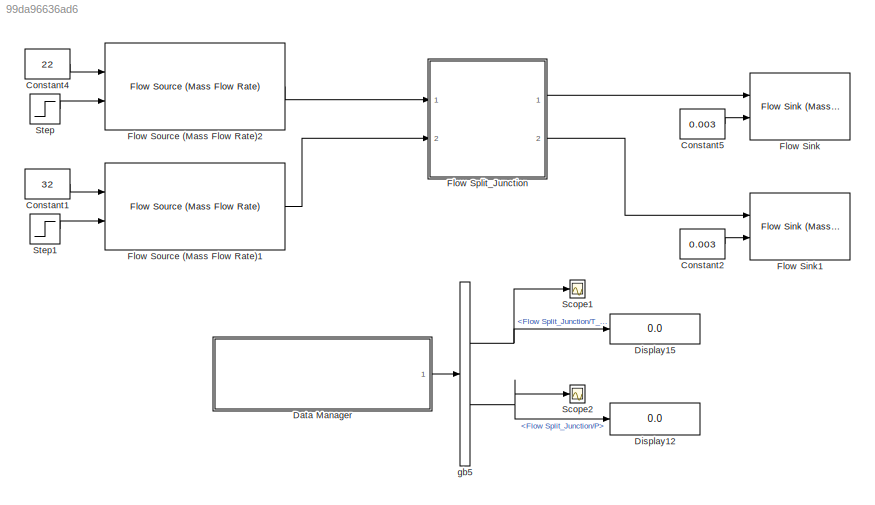
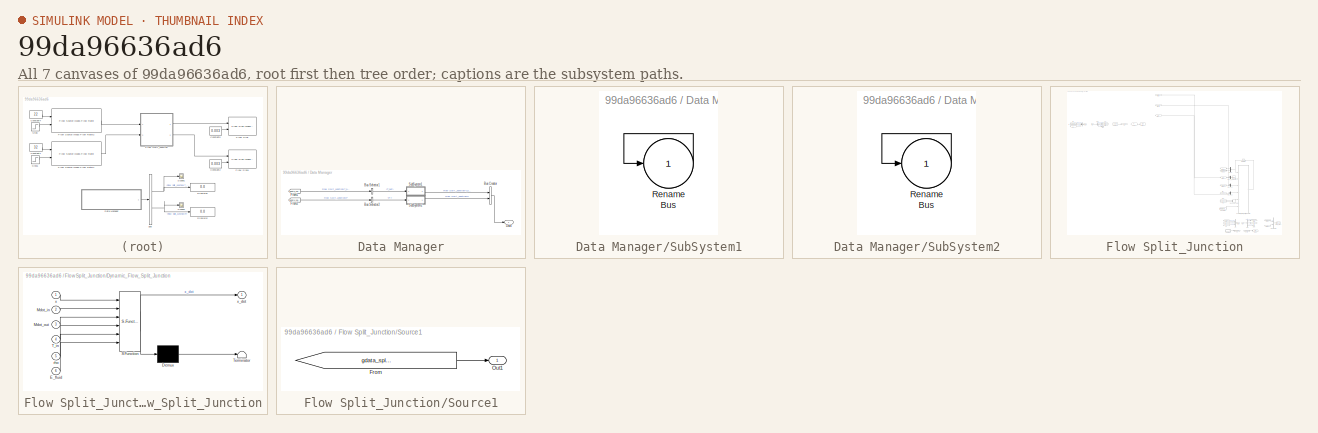
[diagram: thumbnail index - all 7 canvases of the model, root first then tree order]
MODEL slx_99da96636ad6
KIND model
BLOCK [Constant] Constant1
  Value = 32
BLOCK [Constant] Constant2
  Value = 0.003
BLOCK [Constant] Constant4
  Value = 22
BLOCK [Constant] Constant5
  Value = 0.003
BLOCK [SubSystem] Data Manager
  AncestorBlock = DAEMOT_Lib/Support Functions/Data Manager
  OpenFcn = data_manager
  Ports = [0, 1]
  RequestExecContextInheritance = off
  UserDataPersistent = on
BLOCK [BusCreator] Data Manager/Bus Creator
  DisplayOption = bar
  Inputs = 2
  Ports = [2, 1]
BLOCK [BusSelector] Data Manager/Bus Selector1
  OutputSignals = T_out
  Ports = [1, 1]
BLOCK [BusSelector] Data Manager/Bus Selector2
  OutputSignals = P
  Ports = [1, 1]
BLOCK [Outport] Data Manager/Data
  IconDisplay = Port number
BLOCK [From] Data Manager/From1
  GotoTag = gdata_split_junction_testFlowSplit_Junctiondata_sink1
  TagVisibility = global
  UserDataPersistent = on
BLOCK [From] Data Manager/From2
  GotoTag = gdata_split_junction_testFlowSplit_Junctiondata_sink1
  TagVisibility = global
  UserDataPersistent = on
BLOCK [SubSystem] Data Manager/SubSystem1
  Ports = [1, 1]
  RequestExecContextInheritance = off
BLOCK [Outport] Data Manager/SubSystem1/Bus
  IconDisplay = Port number
BLOCK [Inport] Data Manager/SubSystem1/Rename
  IconDisplay = Port number
BLOCK [SubSystem] Data Manager/SubSystem2
  Ports = [1, 1]
  RequestExecContextInheritance = off
BLOCK [Outport] Data Manager/SubSystem2/Bus
  IconDisplay = Port number
BLOCK [Inport] Data Manager/SubSystem2/Rename
  IconDisplay = Port number
BLOCK [Display] Display12
  Decimation = 1
  Ports = [1]
BLOCK [Display] Display15
  Decimation = 1
  Ports = [1]
BLOCK [Reference] Flow Sink  REF=DAEMOT_Lib/Components/Flow Sink (Mass Flow Rate)
  M = 0
  M_ext = on
  P = 0
  P_ext = on
  Ports = [2]
  SourceBlock = DAEMOT_Lib/Components/Flow Sink (Mass Flow Rate)
  SourceType = Flow Sink (Mass Flow Rate)
  T = 0
  T_ext = on
BLOCK [Reference] Flow Sink1  REF=DAEMOT_Lib/Components/Flow Sink (Mass Flow Rate)
  M = 0
  M_ext = on
  P = 0
  P_ext = on
  Ports = [2]
  SourceBlock = DAEMOT_Lib/Components/Flow Sink (Mass Flow Rate)
  SourceType = Flow Sink (Mass Flow Rate)
  T = 0
  T_ext = on
BLOCK [Reference] Flow Source (Mass Flow Rate)1  REF=DAEMOT_Lib/Components/Flow Source (Mass Flow Rate)
  M = 0
  M_ext = on
  P = 0
  P_ext = on
  Ports = [2, 1]
  SourceBlock = DAEMOT_Lib/Components/Flow Source (Mass Flow Rate)
  SourceType = Flow Source (Mass Flow Rate)
  T = 0
  T_ext = on
BLOCK [Reference] Flow Source (Mass Flow Rate)2  REF=DAEMOT_Lib/Components/Flow Source (Mass Flow Rate)
  M = 0
  M_ext = on
  P = 0
  P_ext = on
  Ports = [2, 1]
  SourceBlock = DAEMOT_Lib/Components/Flow Source (Mass Flow Rate)
  SourceType = Flow Source (Mass Flow Rate)
  T = 0
  T_ext = on
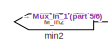
[diagram: Flow Split_Junction - part 1/6, top center region]
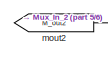
[diagram: Flow Split_Junction - part 2/6, top center region]
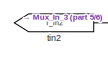
[diagram: Flow Split_Junction - part 3/6, top center region]
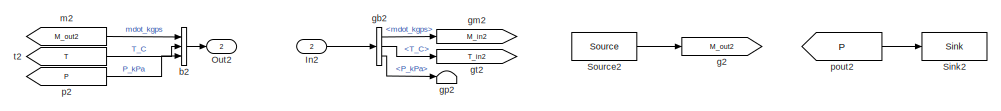
[diagram: Flow Split_Junction - part 4/6, top left region]
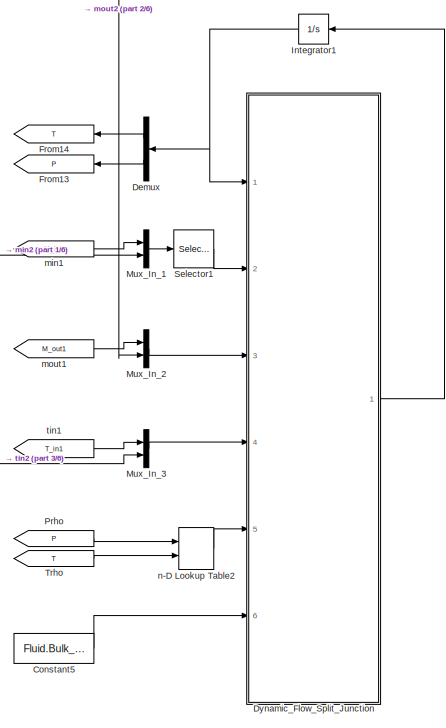
[diagram: Flow Split_Junction - part 5/6, middle right region]
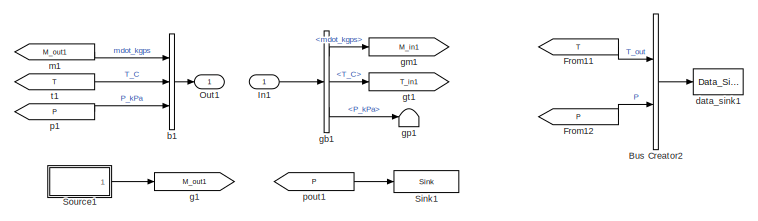
[diagram: Flow Split_Junction - part 6/6, bottom right region]
BLOCK [SubSystem] Flow Split_Junction
  AncestorBlock = DAEMOT_Lib/Components/Flow Split_Junction
  CopyFcn = h      = get_param(gcb,'handle');   % Get block handle\nblk    = gcb; \n\nset_param(blk, 'LinkStatus', 'inactive')
  OpenFcn = load('Fluids.mat');\nSet_Fluid_Popup_Names( Fluid )
  Ports = [2, 2]
  RequestExecContextInheritance = off
BLOCK [BusCreator] Flow Split_Junction/Bus Creator2
  DisplayOption = bar
  Inputs = 2
  Ports = [2, 1]
BLOCK [Constant] Flow Split_Junction/Constant5
  Value = Fluid.Bulk_Mod
BLOCK [Demux] Flow Split_Junction/Demux
  DisplayOption = bar
  Outputs = 2
  Ports = [1, 2]
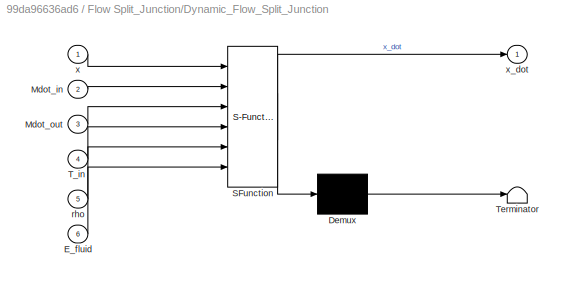
BLOCK [SubSystem] Flow Split_Junction/Dynamic_Flow_Split_Junction
  ErrorFcn = Stateflow.Translate.translate
  PermitHierarchicalResolution = ExplicitOnly
  Ports = [6, 1]
  RequestExecContextInheritance = off
  SFBlockType = MATLAB Function
  TreatAsAtomicUnit = on
BLOCK [Demux] Flow Split_Junction/Dynamic_Flow_Split_Junction/ Demux 
  Outputs = 1
  Ports = [1, 1]
BLOCK [S-Function] Flow Split_Junction/Dynamic_Flow_Split_Junction/ SFunction 
  EnableBusSupport = on
  FunctionName = sf_sfun
  Parameters = D,E,L,t,v
  PortCounts = [6 2]
  Ports = [6, 2]
  Tag = Stateflow S-Function split_junction_test 2
BLOCK [Terminator] Flow Split_Junction/Dynamic_Flow_Split_Junction/ Terminator 
BLOCK [Inport] Flow Split_Junction/Dynamic_Flow_Split_Junction/E_fluid
  IconDisplay = Port number
  Port = 6
BLOCK [Inport] Flow Split_Junction/Dynamic_Flow_Split_Junction/Mdot_in
  IconDisplay = Port number
  Port = 2
BLOCK [Inport] Flow Split_Junction/Dynamic_Flow_Split_Junction/Mdot_out
  IconDisplay = Port number
  Port = 3
BLOCK [Inport] Flow Split_Junction/Dynamic_Flow_Split_Junction/T_in
  IconDisplay = Port number
  Port = 4
BLOCK [Inport] Flow Split_Junction/Dynamic_Flow_Split_Junction/rho
  IconDisplay = Port number
  Port = 5
BLOCK [Inport] Flow Split_Junction/Dynamic_Flow_Split_Junction/x
  IconDisplay = Port number
BLOCK [Outport] Flow Split_Junction/Dynamic_Flow_Split_Junction/x_dot
  IconDisplay = Port number
BLOCK [From] Flow Split_Junction/From11
  CloseFcn = tagdialog Close
  GotoTag = T
BLOCK [From] Flow Split_Junction/From12
  CloseFcn = tagdialog Close
  GotoTag = P
BLOCK [Goto] Flow Split_Junction/From13
  GotoTag = P
BLOCK [Goto] Flow Split_Junction/From14
  GotoTag = T
BLOCK [Inport] Flow Split_Junction/In1
  IconDisplay = Port number
BLOCK [Inport] Flow Split_Junction/In2
  IconDisplay = Port number
  Port = 2
BLOCK [Integrator] Flow Split_Junction/Integrator1
  InitialCondition = [T_init P_init]
  Ports = [1, 1]
BLOCK [Mux] Flow Split_Junction/Mux_In_1
  DisplayOption = bar
  Inputs = 2
  Ports = [2, 1]
BLOCK [Mux] Flow Split_Junction/Mux_In_2
  DisplayOption = bar
  Inputs = 2
  Ports = [2, 1]
BLOCK [Mux] Flow Split_Junction/Mux_In_3
  DisplayOption = bar
  Inputs = 2
  Ports = [2, 1]
BLOCK [Outport] Flow Split_Junction/Out1
  IconDisplay = Port number
BLOCK [Outport] Flow Split_Junction/Out2
  IconDisplay = Port number
  Port = 2
BLOCK [From] Flow Split_Junction/Prho
  CloseFcn = tagdialog Close
  GotoTag = P
BLOCK [Selector] Flow Split_Junction/Selector1
  Indices = [1 2 ]
  InputPortWidth = 2
  Ports = [1, 1]
BLOCK [Reference] Flow Split_Junction/Sink1  REF=DAEMOT_Lib/Support Functions/Sink
  Ports = [1]
  SourceBlock = DAEMOT_Lib/Support Functions/Sink
  SourceType = Sink
BLOCK [Reference] Flow Split_Junction/Sink2  REF=DAEMOT_Lib/Support Functions/Sink
  Ports = [1]
  SourceBlock = DAEMOT_Lib/Support Functions/Sink
  SourceType = Sink
BLOCK [SubSystem] Flow Split_Junction/Source1
  Ports = [0, 1]
  RequestExecContextInheritance = off
BLOCK [From] Flow Split_Junction/Source1/From
  GotoTag = gdata_split_junction_testFlowSinkSink1
  TagVisibility = global
BLOCK [Outport] Flow Split_Junction/Source1/Out1
  IconDisplay = Port number
BLOCK [Reference] Flow Split_Junction/Source2  REF=DAEMOT_Lib/Support Functions/Source
  Ports = [0, 1]
  SourceBlock = DAEMOT_Lib/Support Functions/Source
  SourceType = Source
BLOCK [From] Flow Split_Junction/Trho
  CloseFcn = tagdialog Close
  GotoTag = T
BLOCK [BusCreator] Flow Split_Junction/b1
  DisplayOption = bar
  Inputs = 3
  Ports = [3, 1]
BLOCK [BusCreator] Flow Split_Junction/b2
  DisplayOption = bar
  Inputs = 3
  Ports = [3, 1]
BLOCK [Reference] Flow Split_Junction/data_sink1  REF=DAEMOT_Lib/Support Functions/Data_Sink
  Ports = [1]
  SourceBlock = DAEMOT_Lib/Support Functions/Data_Sink
  SourceType = Data Sink
BLOCK [Goto] Flow Split_Junction/g1
  GotoTag = M_out1
BLOCK [Goto] Flow Split_Junction/g2
  GotoTag = M_out2
BLOCK [BusSelector] Flow Split_Junction/gb1
  OutputSignals = mdot_kgps,T_C,P_kPa
  Ports = [1, 3]
BLOCK [BusSelector] Flow Split_Junction/gb2
  OutputSignals = mdot_kgps,T_C,P_kPa
  Ports = [1, 3]
BLOCK [Goto] Flow Split_Junction/gm1
  GotoTag = M_in1
BLOCK [Goto] Flow Split_Junction/gm2
  GotoTag = M_in2
BLOCK [Terminator] Flow Split_Junction/gp1
BLOCK [Terminator] Flow Split_Junction/gp2
BLOCK [Goto] Flow Split_Junction/gt1
  GotoTag = T_in1
BLOCK [Goto] Flow Split_Junction/gt2
  GotoTag = T_in2
BLOCK [From] Flow Split_Junction/m1
  CloseFcn = tagdialog Close
  GotoTag = M_out1
BLOCK [From] Flow Split_Junction/m2
  GotoTag = M_out2
BLOCK [From] Flow Split_Junction/min1
  CloseFcn = tagdialog Close
  GotoTag = M_in1
BLOCK [From] Flow Split_Junction/min2
  GotoTag = M_in2
BLOCK [From] Flow Split_Junction/mout1
  GotoTag = M_out1
BLOCK [From] Flow Split_Junction/mout2
  GotoTag = M_out2
BLOCK [Lookup_n-D] Flow Split_Junction/n-D Lookup Table2
  BreakpointsForDimension1 = Fluid.P
  BreakpointsForDimension2 = Fluid.T
  BreakpointsForDimension3 = [5, 7]
  ExtrapMethod = Clip
  Ports = [2, 1]
  RndMeth = Simplest
  Table = Fluid.Rho_pt
  UseLastTableValue = on
BLOCK [From] Flow Split_Junction/p1
  CloseFcn = tagdialog Close
  GotoTag = P
BLOCK [From] Flow Split_Junction/p2
  GotoTag = P
BLOCK [From] Flow Split_Junction/pout1
  GotoTag = P
BLOCK [From] Flow Split_Junction/pout2
  GotoTag = P
BLOCK [From] Flow Split_Junction/t1
  CloseFcn = tagdialog Close
  GotoTag = T
BLOCK [From] Flow Split_Junction/t2
  GotoTag = T
BLOCK [From] Flow Split_Junction/tin1
  GotoTag = T_in1
BLOCK [From] Flow Split_Junction/tin2
  GotoTag = T_in2
BLOCK [Scope] Scope1
  Floating = off
  LimitDataPoints = off
  NumInputPorts = 1
  Ports = [1]
  ShowLegends = off
BLOCK [Scope] Scope2
  Floating = off
  LimitDataPoints = off
  NumInputPorts = 1
  Ports = [1]
  SaveName = ScopeData1
  ShowLegends = off
BLOCK [Step] Step
  After = .003
  Before = .002
  SampleTime = 0
  Time = 100
BLOCK [Step] Step1
  After = .003
  Before = .004
  SampleTime = 0
  Time = 100
BLOCK [BusSelector] gb5
  OutputSignals = Flow Split_Junction/T_out,Flow Split_Junction/P
  Ports = [1, 2]
LINE Constant1:1 -> Flow Source (Mass Flow Rate)1:1
LINE Constant2:1 -> Flow Sink1:2
LINE Constant4:1 -> Flow Source (Mass Flow Rate)2:1
LINE Constant5:1 -> Flow Sink:2
LINE Data Manager:1 -> gb5:1
LINE Flow Source (Mass Flow Rate)1:1 -> Flow Split_Junction:2
LINE Flow Source (Mass Flow Rate)2:1 -> Flow Split_Junction:1
LINE Flow Split_Junction:1 -> Flow Sink:1
LINE Flow Split_Junction:2 -> Flow Sink1:1
LINE Step1:1 -> Flow Source (Mass Flow Rate)1:2
LINE Step:1 -> Flow Source (Mass Flow Rate)2:2
NET gb5:1 -> Display15:1, Scope1:1
NET gb5:2 -> Display12:1, Scope2:1
note: NET lines group one-source signal fan-out (src -> all destinations, sorted); 1:1 wires keep LINE
CHART Flow Split_Junction/Dynamic_Flow_Split_Junction states=1 transitions=1
  STATE_LABEL 'eML_blk_kernel()'
  STATE_LABEL 'SCRIPT:\nfunction x_dot  = Dynamic_Flow_Split_Junction(x,Mdot_in,Mdot_out,T_in,D,L,t,E,v,rho,E_fluid)\n\n% Constants and Conversions\nMdot_in_tot     = sum(Mdot_in);     % Total mass flow rate in\nMdot_out_tot    = sum(Mdot_out);    % Total mass flow rate out\nV               = pi*D^2/4*L;       % Volume\n\n% Parse states\nT      = x(1);                  % Temperature of the tank\nP      = x(2);            ...<+295ch>'
